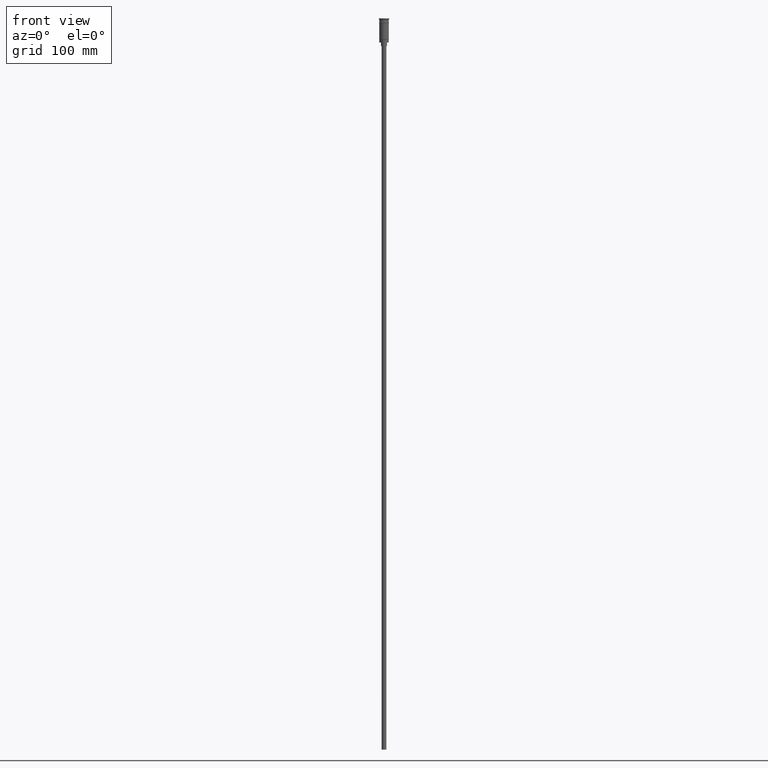
[diagram: clean part render]
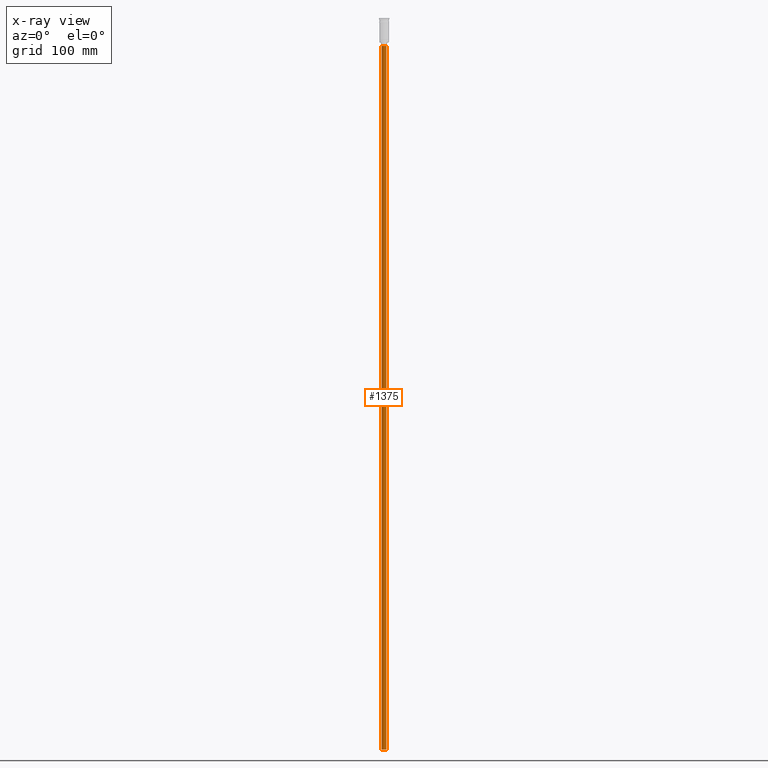
[diagram: x-ray — body ghosted, one internal face saturated and labeled with its STEP entity id]
A machine part, front view, then the same camera in x-ray: the body is ghosted and one INTERNAL B-rep face — a face not visible from any outside direction — is saturated and labeled: STEP entity #1375.
In plain terms, the highlighted cylindrical surface (edge-blend (fillet) strip) has radius 2 mm, axis along (-0, -0, 1).
Its self-contained STEP definition (entity closure, byte-faithful):
#43 = ORIENTED_EDGE ( 'NONE', *, *, #385, .T. ) ;
#46 = DIRECTION ( 'NONE',  ( -1.000000000000000000, 0.000000000000000000, 0.000000000000000000 ) ) ;
#69 = DIRECTION ( 'NONE',  ( -1.000000000000000000, 0.000000000000000000, 0.000000000000000000 ) ) ;
#82 = VECTOR ( 'NONE', #1494, 1000.000000000000000 ) ;
#99 = VERTEX_POINT ( 'NONE', #128 ) ;
#128 = CARTESIAN_POINT ( 'NONE',  ( -2.000000000000000000, 2.449293598294706414E-16, -620.4999999999998863 ) ) ;
#137 = LINE ( 'NONE', #890, #82 ) ;
#139 = EDGE_CURVE ( 'NONE', #99, #351, #137, .T. ) ;
#256 = ORIENTED_EDGE ( 'NONE', *, *, #696, .T. ) ;
#293 = CIRCLE ( 'NONE', #672, 2.000000000000000000 ) ;
#351 = VERTEX_POINT ( 'NONE', #673 ) ;
#375 = CYLINDRICAL_SURFACE ( 'NONE', #1508, 2.000000000000000000 ) ;
#385 = EDGE_CURVE ( 'NONE', #950, #479, #907, .T. ) ;
#441 = CIRCLE ( 'NONE', #1350, 2.000000000000000000 ) ;
#478 = DIRECTION ( 'NONE',  ( -0.000000000000000000, -0.000000000000000000, 1.000000000000000000 ) ) ;
#479 = VERTEX_POINT ( 'NONE', #711 ) ;
#559 = CARTESIAN_POINT ( 'NONE',  ( 0.000000000000000000, 0.000000000000000000, -620.4999999999998863 ) ) ;
#672 = AXIS2_PLACEMENT_3D ( 'NONE', #1357, #729, #69 ) ;
#673 = CARTESIAN_POINT ( 'NONE',  ( -2.000000000000000000, 2.449293598294706414E-16, -23.49999999999999645 ) ) ;
#696 = EDGE_CURVE ( 'NONE', #479, #351, #441, .T. ) ;
#711 = CARTESIAN_POINT ( 'NONE',  ( 2.000000000000000000, 0.000000000000000000, -23.49999999999999645 ) ) ;
#729 = DIRECTION ( 'NONE',  ( 0.000000000000000000, 0.000000000000000000, -1.000000000000000000 ) ) ;
#735 = EDGE_LOOP ( 'NONE', ( #1017, #1316, #43, #256 ) ) ;
#787 = CARTESIAN_POINT ( 'NONE',  ( 0.000000000000000000, 0.000000000000000000, -23.49999999999999645 ) ) ;
#806 = CARTESIAN_POINT ( 'NONE',  ( 2.000000000000000000, 0.000000000000000000, -620.4999999999998863 ) ) ;
#890 = CARTESIAN_POINT ( 'NONE',  ( -2.000000000000000000, 2.449293598294706414E-16, -620.4999999999998863 ) ) ;
#907 = LINE ( 'NONE', #1550, #1054 ) ;
#950 = VERTEX_POINT ( 'NONE', #806 ) ;
#978 = FACE_OUTER_BOUND ( 'NONE', #735, .T. ) ;
#1017 = ORIENTED_EDGE ( 'NONE', *, *, #139, .F. ) ;
#1035 = DIRECTION ( 'NONE',  ( 0.000000000000000000, 0.000000000000000000, -1.000000000000000000 ) ) ;
#1054 = VECTOR ( 'NONE', #478, 1000.000000000000000 ) ;
#1268 = EDGE_CURVE ( 'NONE', #950, #99, #293, .T. ) ;
#1316 = ORIENTED_EDGE ( 'NONE', *, *, #1268, .F. ) ;
#1350 = AXIS2_PLACEMENT_3D ( 'NONE', #787, #1035, #46 ) ;
#1357 = CARTESIAN_POINT ( 'NONE',  ( 0.000000000000000000, 0.000000000000000000, -620.4999999999998863 ) ) ;
#1375 = ADVANCED_FACE ( 'NONE', ( #978 ), #375, .T. ) ;
#1489 = DIRECTION ( 'NONE',  ( 1.000000000000000000, 0.000000000000000000, 0.000000000000000000 ) ) ;
#1494 = DIRECTION ( 'NONE',  ( -0.000000000000000000, -0.000000000000000000, 1.000000000000000000 ) ) ;
#1508 = AXIS2_PLACEMENT_3D ( 'NONE', #559, #1553, #1489 ) ;
#1550 = CARTESIAN_POINT ( 'NONE',  ( 2.000000000000000000, 0.000000000000000000, -620.4999999999998863 ) ) ;
#1553 = DIRECTION ( 'NONE',  ( -0.000000000000000000, -0.000000000000000000, 1.000000000000000000 ) ) ;